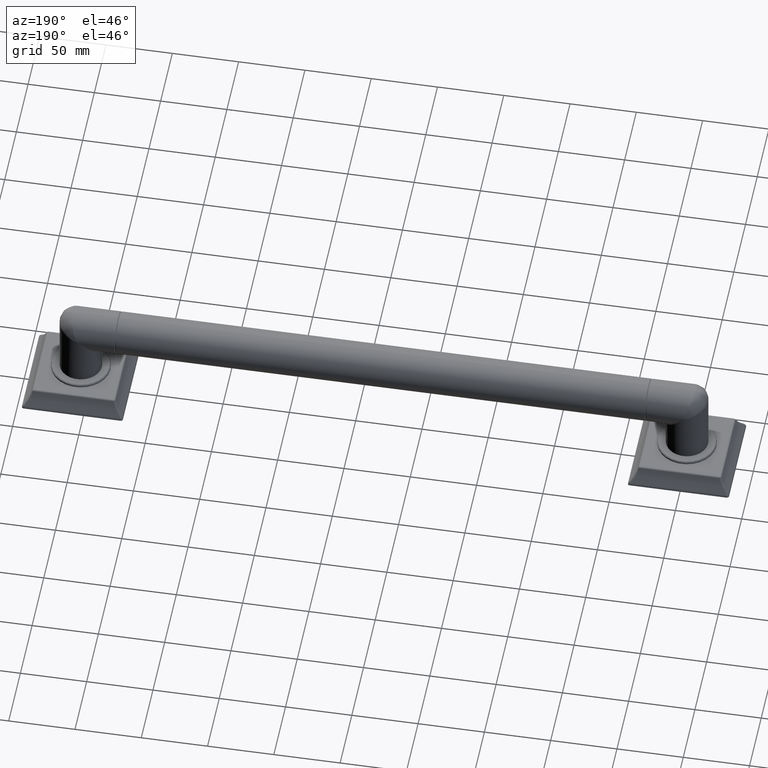
[diagram: clean part render]
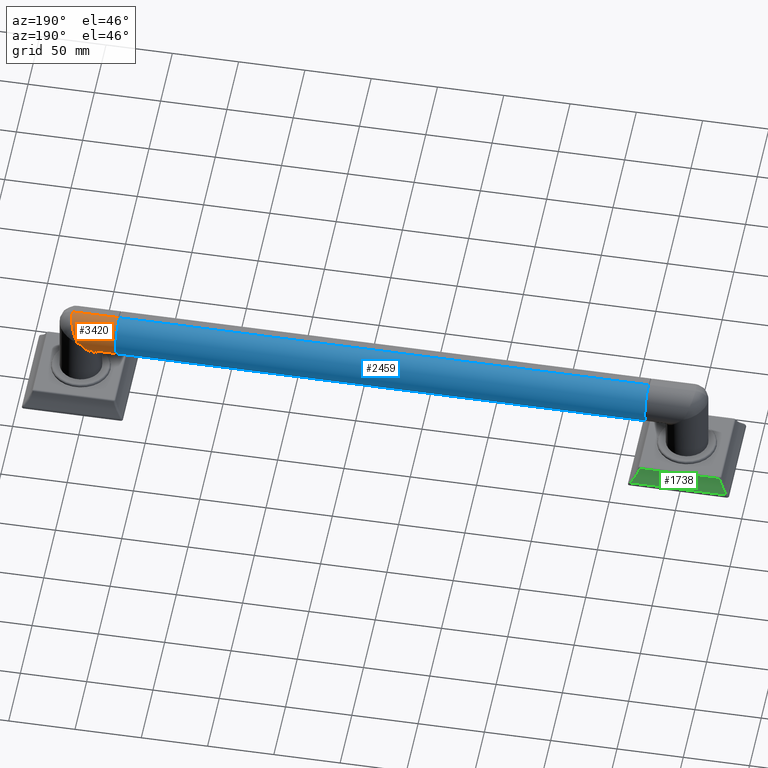
[diagram: same view with three faces highlighted in distinct colors, each labeled with its STEP entity id]
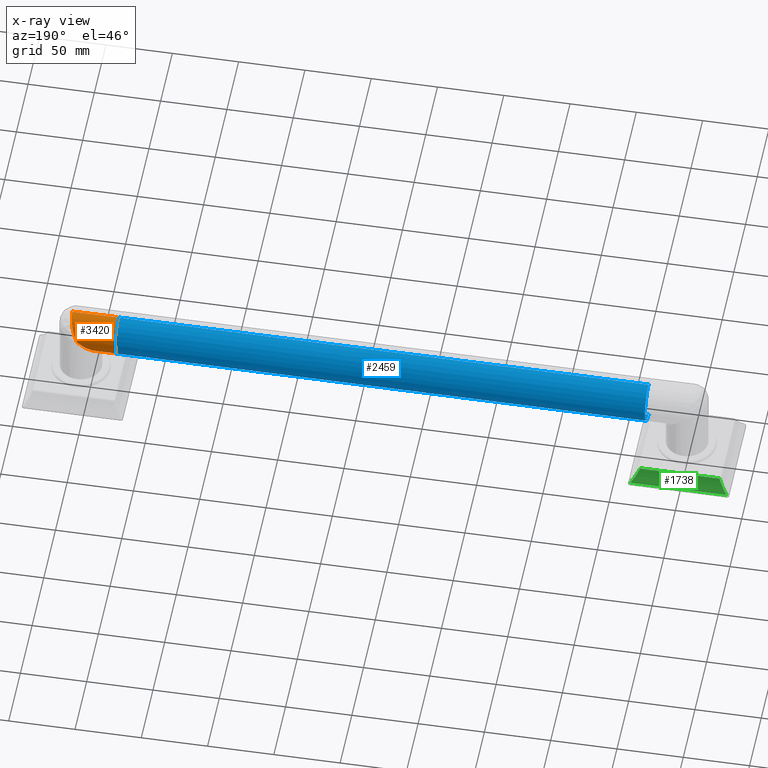
[diagram: x-ray of the same camera — body ghosted, the three highlighted faces saturated]
A machine part, auxiliary view with three faces highlighted in distinct colors.
The next image is the same camera in x-ray (body ghosted, the three faces saturated) — at least one of them is partly hidden behind the body in this view.
Their STEP definitions:

[orange] entity #3420 — the highlighted cylindrical surface (edge-blend (fillet) strip) has radius 15.875 mm, axis along (1, 0, 0).
#640=CARTESIAN_POINT('',(1.7313E1,5.546547124107E-12,1.505000099686E0));
#665=DIRECTION('',(9.999999999999E-1,-2.605429982983E-11,-4.052948104160E-7));
#666=VECTOR('',#665,1.355000000023E0);
#667=CARTESIAN_POINT('',(1.689499999999E1,6.563830130070E-11,2.754999999986E0));
#668=LINE('',#667,#666);
#1150=CARTESIAN_POINT('',(1.8E1,6.25E-1,2.13E0));
#1151=CARTESIAN_POINT('',(1.797131516687E1,6.249982023250E-1,2.103904691855E0));
#1152=CARTESIAN_POINT('',(1.791454573303E1,6.217561522427E-1,2.052257361763E0));
#1153=CARTESIAN_POINT('',(1.783108720856E1,6.074256109674E-1,1.976331270883E0));
#1154=CARTESIAN_POINT('',(1.775192740692E1,5.844165706095E-1,1.904315288064E0));
#1155=CARTESIAN_POINT('',(1.767850472207E1,5.539078530234E-1,1.837518858513E0));
#1156=CARTESIAN_POINT('',(1.761194618018E1,5.172929379350E-1,1.776967171487E0));
#1157=CARTESIAN_POINT('',(1.755282796961E1,4.760123826981E-1,1.723184300649E0));
#1158=CARTESIAN_POINT('',(1.750129441506E1,4.314056586918E-1,1.676301352810E0));
#1159=CARTESIAN_POINT('',(1.745715799070E1,3.846296818154E-1,1.636148098123E0));
#1160=CARTESIAN_POINT('',(1.742000756958E1,3.366087662419E-1,1.602350461971E0));
#1161=CARTESIAN_POINT('',(1.738931274475E1,2.880308208627E-1,1.574425831186E0));
#1162=CARTESIAN_POINT('',(1.736449800309E1,2.393527444990E-1,1.551850219463E0));
#1163=CARTESIAN_POINT('',(1.734501081389E1,1.908205209188E-1,1.534122115129E0));
#1164=CARTESIAN_POINT('',(1.733040110352E1,1.426444347438E-1,1.520830126878E0));
#1165=CARTESIAN_POINT('',(1.732024262442E1,9.471620408997E-2,1.511589283201E0));
#1166=CARTESIAN_POINT('',(1.731429125683E1,4.710141207114E-2,1.506172494258E0));
#1167=CARTESIAN_POINT('',(1.731300117549E1,1.561832561639E-2,1.505000443E0));
#1168=CARTESIAN_POINT('',(1.7313E1,5.546547124107E-12,1.505000099686E0));
#1170=CARTESIAN_POINT('',(1.8E1,6.25E-1,2.13E0));
#1171=CARTESIAN_POINT('',(1.800931612773E1,6.249960153826E-1,2.153080995817E0));
#1172=CARTESIAN_POINT('',(1.802767862860E1,6.224402461877E-1,2.199216726025E0));
#1173=CARTESIAN_POINT('',(1.805493575415E1,6.110147437854E-1,2.267367556100E0));
#1174=CARTESIAN_POINT('',(1.808145246892E1,5.922380802902E-1,2.333591200652E0));
#1175=CARTESIAN_POINT('',(1.810679191345E1,5.664624492790E-1,2.397011954359E0));
#1176=CARTESIAN_POINT('',(1.813073021251E1,5.341722104220E-1,2.456820082588E0));
#1177=CARTESIAN_POINT('',(1.815293734386E1,4.959310320738E-1,2.512330389802E0));
#1178=CARTESIAN_POINT('',(1.817316102922E1,4.523878739909E-1,2.562943698629E0));
#1179=CARTESIAN_POINT('',(1.819130119252E1,4.041960673856E-1,2.608218466292E0));
#1180=CARTESIAN_POINT('',(1.820710944484E1,3.520198006699E-1,2.647804193581E0));
#1181=CARTESIAN_POINT('',(1.822056849238E1,2.965734754894E-1,2.681412541582E0));
#1182=CARTESIAN_POINT('',(1.823155254424E1,2.385026472248E-1,2.708881731238E0));
#1183=CARTESIAN_POINT('',(1.824002438406E1,1.784149679665E-1,2.730114292138E0));
#1184=CARTESIAN_POINT('',(1.824602608523E1,1.170744856391E-1,2.744994449765E0));
#1185=CARTESIAN_POINT('',(1.824932741555E1,5.652047169664E-2,2.753379479227E0));
#1186=CARTESIAN_POINT('',(1.825000129776E1,1.846924920330E-2,2.754996407192E0));
#1187=CARTESIAN_POINT('',(1.825000000001E1,3.033472503068E-11,
2.754999450812E0));
#1189=CARTESIAN_POINT('',(1.6895E1,0.E0,2.13E0));
#1190=DIRECTION('',(1.E0,0.E0,0.E0));
#1191=DIRECTION('',(0.E0,0.E0,-1.E0));
#1192=AXIS2_PLACEMENT_3D('',#1189,#1190,#1191);
#1194=DIRECTION('',(1.E0,1.702987189427E-10,2.384496013644E-7));
#1195=VECTOR('',#1194,4.180000000132E-1);
#1196=CARTESIAN_POINT('',(1.689499999999E1,-6.563831739620E-11,
1.505000000014E0));
#1197=LINE('',#1196,#1195);
#1243=CARTESIAN_POINT('',(1.825E1,1.221748212336E-7,2.754999730258E0));
#1245=VERTEX_POINT('',#1243);
#1246=CARTESIAN_POINT('',(1.6895E1,0.E0,2.755E0));
#1247=CARTESIAN_POINT('',(1.6895E1,0.E0,1.505E0));
#1248=VERTEX_POINT('',#1246);
#1249=VERTEX_POINT('',#1247);
#1252=VERTEX_POINT('',#640);
#1253=VERTEX_POINT('',#1150);
#3407=CARTESIAN_POINT('',(1.6375E1,0.E0,2.13E0));
#3408=DIRECTION('',(1.E0,0.E0,0.E0));
#3409=DIRECTION('',(0.E0,0.E0,-1.E0));
#3410=AXIS2_PLACEMENT_3D('',#3407,#3408,#3409);
#3411=CYLINDRICAL_SURFACE('',#3410,6.25E-1);
#3413=ORIENTED_EDGE('',*,*,#3412,.F.);
#3414=ORIENTED_EDGE('',*,*,#3343,.T.);
#3415=ORIENTED_EDGE('',*,*,#2526,.F.);
#3416=ORIENTED_EDGE('',*,*,#2483,.F.);
#3417=ORIENTED_EDGE('',*,*,#2523,.T.);
#3418=EDGE_LOOP('',(#3413,#3414,#3415,#3416,#3417));
#3419=FACE_OUTER_BOUND('',#3418,.F.);
#3420=ADVANCED_FACE('',(#3419),#3411,.T.);
#1169=B_SPLINE_CURVE_WITH_KNOTS('',3,(#1150,#1151,#1152,#1153,#1154,#1155,#1156,
#1157,#1158,#1159,#1160,#1161,#1162,#1163,#1164,#1165,#1166,#1167,#1168),
.UNSPECIFIED.,.F.,.F.,(4,1,1,1,1,1,1,1,1,1,1,1,1,1,1,1,4),(0.E0,6.25E-2,1.25E-1,
1.875E-1,2.5E-1,3.125E-1,3.75E-1,4.375E-1,5.E-1,5.625E-1,6.25E-1,6.875E-1,
7.5E-1,8.125E-1,8.75E-1,9.375E-1,1.E0),.UNSPECIFIED.);
#1188=B_SPLINE_CURVE_WITH_KNOTS('',3,(#1170,#1171,#1172,#1173,#1174,#1175,#1176,
#1177,#1178,#1179,#1180,#1181,#1182,#1183,#1184,#1185,#1186,#1187),
.UNSPECIFIED.,.F.,.F.,(4,1,1,1,1,1,1,1,1,1,1,1,1,1,1,4),(0.E0,6.666666666667E-2,
1.333333333333E-1,2.E-1,2.666666666667E-1,3.333333333333E-1,4.E-1,
4.666666666667E-1,5.333333333333E-1,6.E-1,6.666666666667E-1,7.333333333333E-1,
8.E-1,8.666666666667E-1,9.333333333333E-1,1.E0),.UNSPECIFIED.);
#1193=CIRCLE('',#1192,6.25E-1);
#2483=EDGE_CURVE('',#1249,#1248,#1193,.T.);
#2523=EDGE_CURVE('',#1249,#1252,#1197,.T.);
#2526=EDGE_CURVE('',#1248,#1245,#668,.T.);
#3343=EDGE_CURVE('',#1253,#1245,#1188,.T.);
#3412=EDGE_CURVE('',#1253,#1252,#1169,.T.);

[blue] entity #2459 — the highlighted cylindrical surface (edge-blend (fillet) strip) has radius 15.875 mm, axis along (-1, 0, 0).
#596=DIRECTION('',(-1.E0,0.E0,0.E0));
#597=VECTOR('',#596,1.571000000202E1);
#598=CARTESIAN_POINT('',(1.685500000101E1,4.781635968763E-9,1.505000001012E0));
#599=LINE('',#598,#597);
#600=CARTESIAN_POINT('',(1.145E0,0.E0,2.13E0));
#601=DIRECTION('',(-1.E0,0.E0,0.E0));
#602=DIRECTION('',(0.E0,0.E0,1.E0));
#603=AXIS2_PLACEMENT_3D('',#600,#601,#602);
#605=CARTESIAN_POINT('',(1.6855E1,0.E0,2.13E0));
#606=DIRECTION('',(1.E0,0.E0,0.E0));
#607=DIRECTION('',(0.E0,0.E0,-1.E0));
#608=AXIS2_PLACEMENT_3D('',#605,#606,#607);
#610=DIRECTION('',(-1.E0,0.E0,0.E0));
#611=VECTOR('',#610,1.571000000202E1);
#612=CARTESIAN_POINT('',(1.685500000101E1,-4.781635892956E-9,2.754999998988E0));
#613=LINE('',#612,#611);
#1214=CARTESIAN_POINT('',(1.145E0,0.E0,2.755E0));
#1215=CARTESIAN_POINT('',(1.145E0,0.E0,1.505E0));
#1216=VERTEX_POINT('',#1214);
#1217=VERTEX_POINT('',#1215);
#1218=CARTESIAN_POINT('',(1.6855E1,0.E0,1.505E0));
#1219=CARTESIAN_POINT('',(1.6855E1,0.E0,2.755E0));
#1220=VERTEX_POINT('',#1218);
#1221=VERTEX_POINT('',#1219);
#2447=CARTESIAN_POINT('',(1.6875E1,0.E0,2.13E0));
#2448=DIRECTION('',(-1.E0,0.E0,0.E0));
#2449=DIRECTION('',(0.E0,0.E0,-1.E0));
#2450=AXIS2_PLACEMENT_3D('',#2447,#2448,#2449);
#2451=CYLINDRICAL_SURFACE('',#2450,6.25E-1);
#2452=ORIENTED_EDGE('',*,*,#2399,.T.);
#2453=ORIENTED_EDGE('',*,*,#2442,.F.);
#2455=ORIENTED_EDGE('',*,*,#2454,.T.);
#2456=ORIENTED_EDGE('',*,*,#2438,.T.);
#2457=EDGE_LOOP('',(#2452,#2453,#2455,#2456));
#2458=FACE_OUTER_BOUND('',#2457,.F.);
#2459=ADVANCED_FACE('',(#2458),#2451,.T.);
#604=CIRCLE('',#603,6.25E-1);
#609=CIRCLE('',#608,6.25E-1);
#2399=EDGE_CURVE('',#1216,#1217,#604,.T.);
#2438=EDGE_CURVE('',#1221,#1216,#613,.T.);
#2442=EDGE_CURVE('',#1220,#1217,#599,.T.);
#2454=EDGE_CURVE('',#1220,#1221,#609,.T.);

[green] entity #1738 — the highlighted cylindrical surface (partial cylindrical patch) has radius 34.29 mm, axis along (-1, 0, 0).
#189=DIRECTION('',(-1.E0,-1.930875095815E-8,4.406258633491E-8));
#190=VECTOR('',#189,2.358672598604E0);
#191=CARTESIAN_POINT('',(1.179336318082E0,1.235673918475E0,4.856412035862E-1));
#192=LINE('',#191,#190);
#193=CARTESIAN_POINT('',(-1.424720559449E0,1.470616460499E0,8.051392725293E-2));
#194=CARTESIAN_POINT('',(-1.401839321611E0,1.448708790563E0,1.065311865746E-1));
#195=CARTESIAN_POINT('',(-1.358855822362E0,1.407554239241E0,1.594041000332E-1));
#196=CARTESIAN_POINT('',(-1.302651400929E0,1.353742365512E0,2.400605726142E-1));
#197=CARTESIAN_POINT('',(-1.254123273982E0,1.307278008596E0,3.216254469712E-1));
#198=CARTESIAN_POINT('',(-1.212830067314E0,1.267742938456E0,4.035783615456E-1));
#199=CARTESIAN_POINT('',(-1.189778545560E0,1.245671643957E0,4.583537083680E-1));
#200=CARTESIAN_POINT('',(-1.179336280522E0,1.235673872932E0,4.856413075154E-1));
#202=DIRECTION('',(-1.E0,-1.363442049454E-11,1.619326081087E-11));
#203=VECTOR('',#202,2.849441118929E0);
#204=CARTESIAN_POINT('',(1.424720559480E0,1.470616460538E0,8.051392720679E-2));
#205=LINE('',#204,#203);
#206=CARTESIAN_POINT('',(1.424720559480E0,1.470616460538E0,8.051392720679E-2));
#207=CARTESIAN_POINT('',(1.401834993473E0,1.448704637604E0,1.065361182218E-1));
#208=CARTESIAN_POINT('',(1.358845754731E0,1.407544693280E0,1.594171092671E-1));
#209=CARTESIAN_POINT('',(1.302643372633E0,1.353734781014E0,2.400730287376E-1));
#210=CARTESIAN_POINT('',(1.254117132364E0,1.307272100059E0,3.216366912934E-1));
#211=CARTESIAN_POINT('',(1.212825284436E0,1.267738393234E0,4.035889332153E-1));
#212=CARTESIAN_POINT('',(1.189776957387E0,1.245670108512E0,4.583578707779E-1));
#213=CARTESIAN_POINT('',(1.179336318082E0,1.235673918475E0,4.856412035862E-1));
#1262=CARTESIAN_POINT('',(1.424720559480E0,1.470616460538E0,8.051392720679E-2));
#1263=CARTESIAN_POINT('',(-1.424720559449E0,1.470616460499E0,
8.051392725293E-2));
#1264=VERTEX_POINT('',#1262);
#1265=VERTEX_POINT('',#1263);
#1278=CARTESIAN_POINT('',(-1.179336223995E0,1.235674014770E0,
4.856415338277E-1));
#1280=VERTEX_POINT('',#1278);
#1292=CARTESIAN_POINT('',(1.179336223161E0,1.235674014869E0,4.856415335582E-1));
#1293=VERTEX_POINT('',#1292);
#1726=CARTESIAN_POINT('',(1.5E0,2.503274234290E0,9.500643411043E-1));
#1727=DIRECTION('',(-1.E0,0.E0,0.E0));
#1728=DIRECTION('',(0.E0,-1.E0,0.E0));
#1729=AXIS2_PLACEMENT_3D('',#1726,#1727,#1728);
#1730=CYLINDRICAL_SURFACE('',#1729,1.35E0);
#1731=ORIENTED_EDGE('',*,*,#1509,.T.);
#1732=ORIENTED_EDGE('',*,*,#1561,.F.);
#1734=ORIENTED_EDGE('',*,*,#1733,.F.);
#1735=ORIENTED_EDGE('',*,*,#1718,.T.);
#1736=EDGE_LOOP('',(#1731,#1732,#1734,#1735));
#1737=FACE_OUTER_BOUND('',#1736,.F.);
#1738=ADVANCED_FACE('',(#1737),#1730,.F.);
#201=B_SPLINE_CURVE_WITH_KNOTS('',3,(#193,#194,#195,#196,#197,#198,#199,#200),
.UNSPECIFIED.,.F.,.F.,(4,1,1,1,1,4),(0.E0,2.E-1,4.E-1,6.E-1,8.E-1,1.E0),
.UNSPECIFIED.);
#214=B_SPLINE_CURVE_WITH_KNOTS('',3,(#206,#207,#208,#209,#210,#211,#212,#213),
.UNSPECIFIED.,.F.,.F.,(4,1,1,1,1,4),(0.E0,2.E-1,4.E-1,6.E-1,8.E-1,1.E0),
.UNSPECIFIED.);
#1509=EDGE_CURVE('',#1293,#1280,#192,.T.);
#1561=EDGE_CURVE('',#1265,#1280,#201,.T.);
#1718=EDGE_CURVE('',#1264,#1293,#214,.T.);
#1733=EDGE_CURVE('',#1264,#1265,#205,.T.);